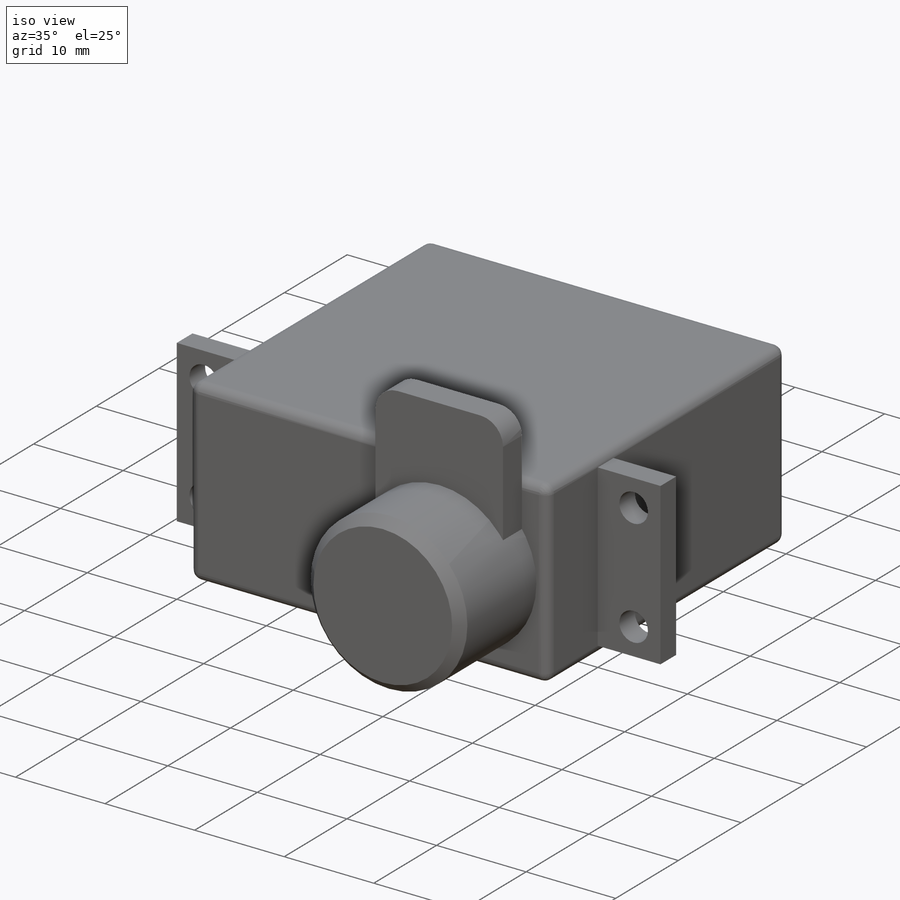
[diagram: iso view]
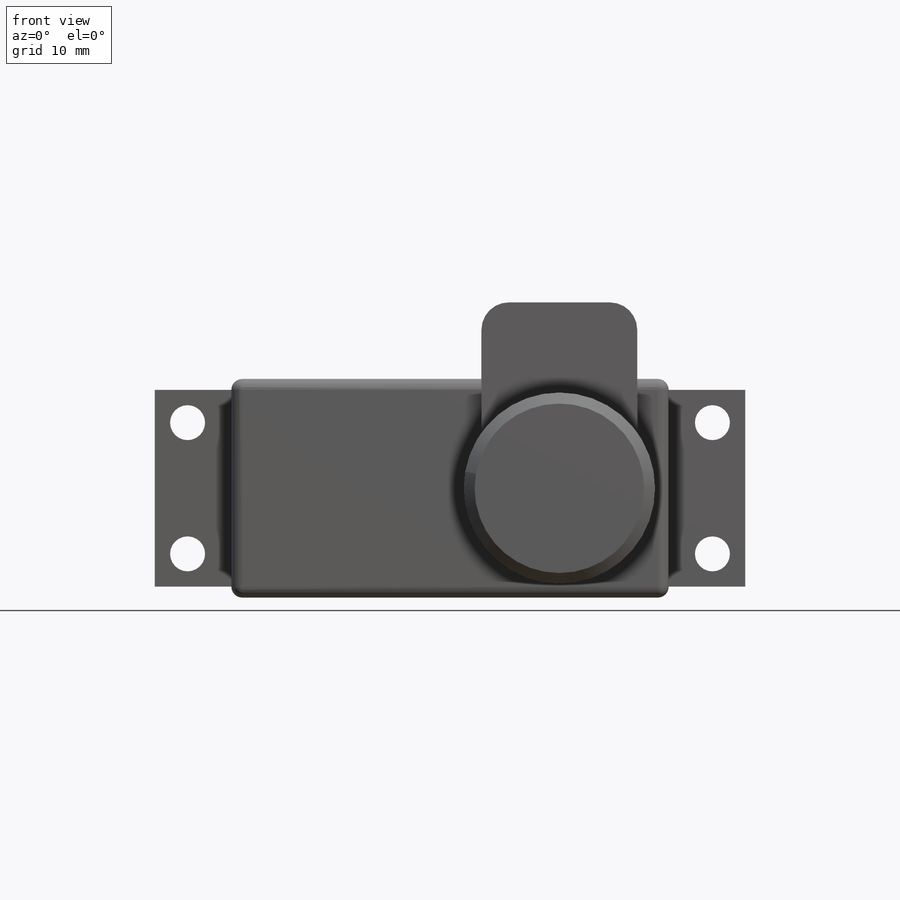
[diagram: front view]
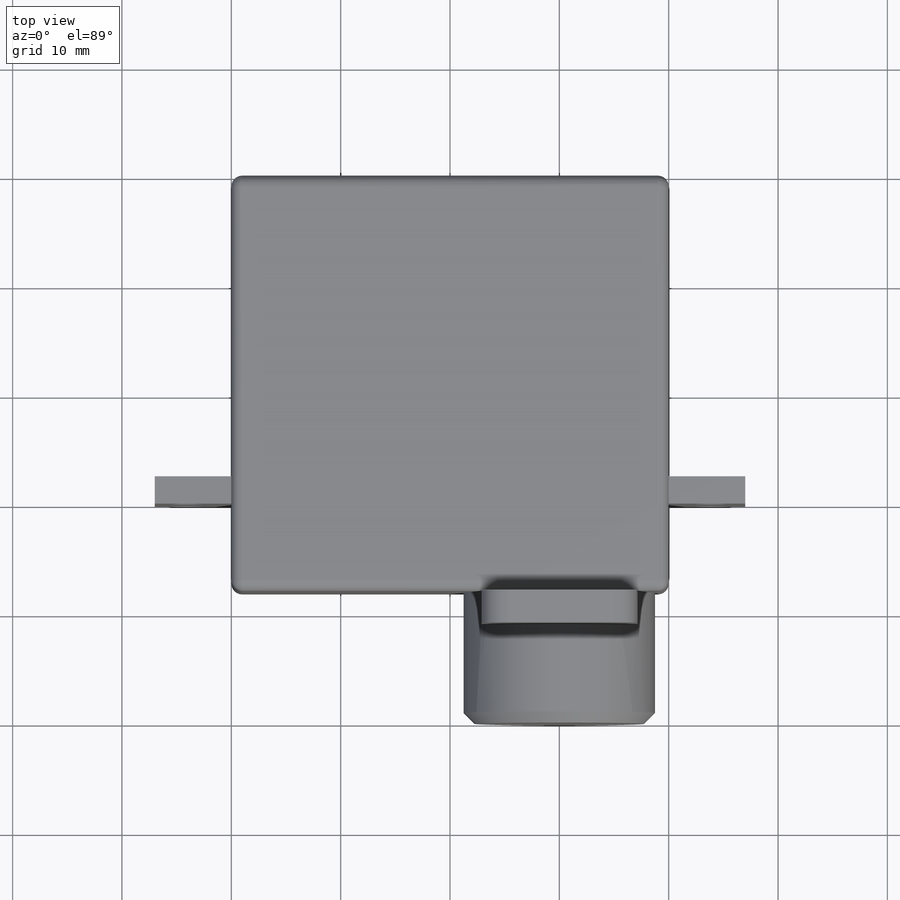
[diagram: top view]
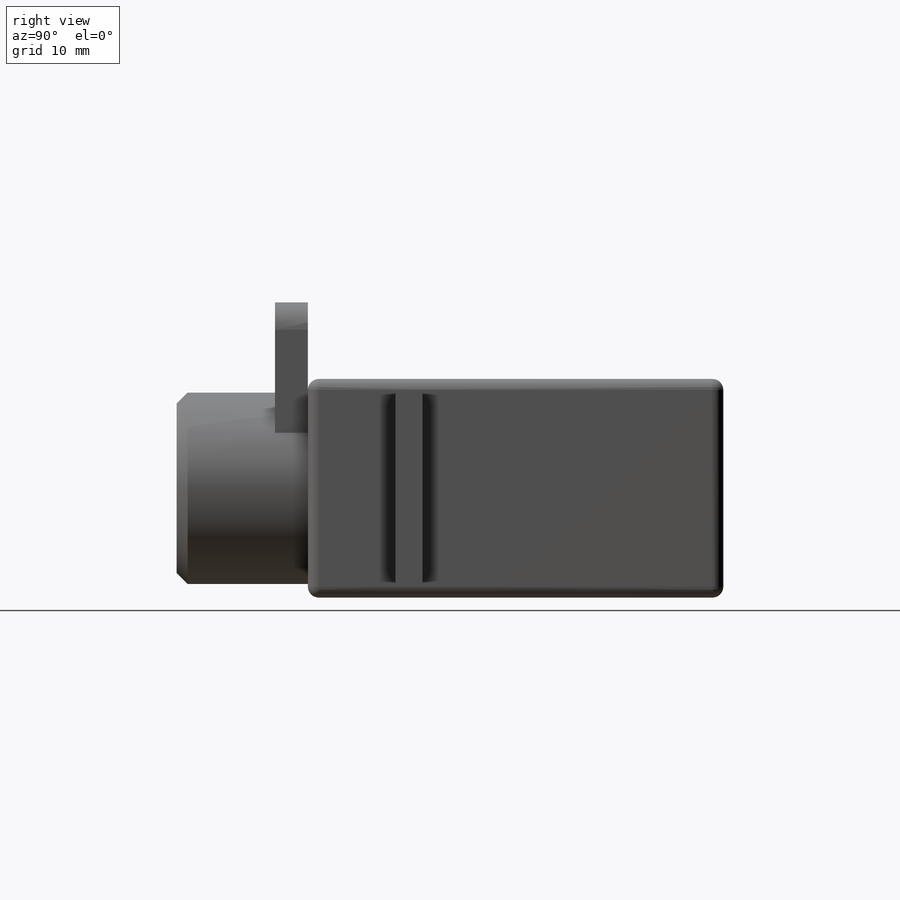
[diagram: right view]
SOLIDWORKS PART (.sldprt)
format: sldprt  version: not decoded by parser v0  size: 363,008 bytes
history: native  units: mm
features: sketch x7, extrude x4, fillet x2, material x1, cut_extrude x1, hole x1, chamfer x1 (+12 scaffold rows collapsed)
feature tree (29):
  scaffold x12  (default folders/planes/origin — collapsed)
  material  "Delrin 2700 NC010, Low Viscosity Acetal Copolymer (SS)"
  sketch  "Sketch1"  dims[D1=40.0mm D2=20.0mm]
  extrude  "Boss-Extrude1"  Depth=27.5mm
  sketch  "Sketch2"  dims[D1=54.0mm D2=18.0mm D3=0.0mm]
  extrude  "Boss-Extrude2"  Depth=2.5mm
  sketch  "Sketch3"
  extrude  "Boss-Extrude3"  Depth=8mm
  fillet  "Fillet2"  Radius=1mm
  sketch  "Sketch5"  dims[c1.D2=17.5mm c1.D1=10.0mm c1.D3=14.25mm c1.D4=17.0mm c2.D1=10.0mm]
  extrude  "Boss-Extrude4"  Depth=12mm
  sketch  "Sketch6"
  cut_extrude  "Cut-Extrude1"  Depth=9mm
  hole  "M3 Clearance Hole1"  Diameter=3.2mm Depth=3.175mm
  sketch  "Sketch8"  dims[c1.D1=4.0mm c1.D2=4.0mm c1.D3=3.0mm c1.D4=3.0mm c2.D1=3.0mm c2.D2=4.0mm c2.D3=3.0mm c2.D4=4.0mm]
  sketch  "Sketch7"  dims[hole-wizard template sketch: 47 standard entries collapsed; hole parameters kept: c15.Hole Depth=3.175mm c15.D3=~14.816244mm c15.Drill Angle=118.0deg]
  fillet  "Fillet1"  Radius=2.5mm
  chamfer  "Chamfer1"  Distance=1mm Angle=45deg
decode coverage: 14 of 16 modeling features carry decoded parameters
note: ~ marks probable driven/reference dimensions
note: suppression state not decoded; provenance and decode notes live in map.json
